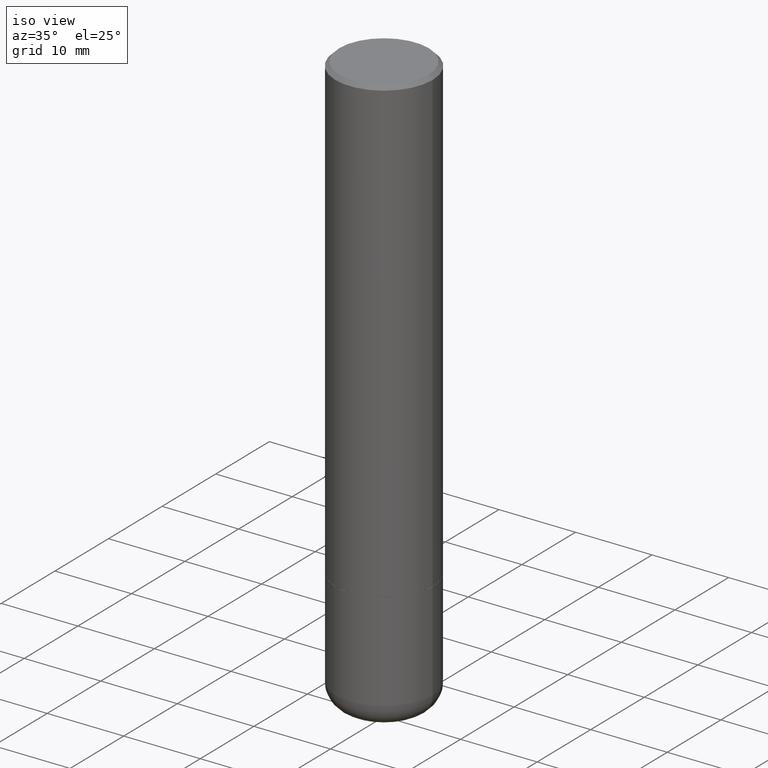
[diagram: clean part render]
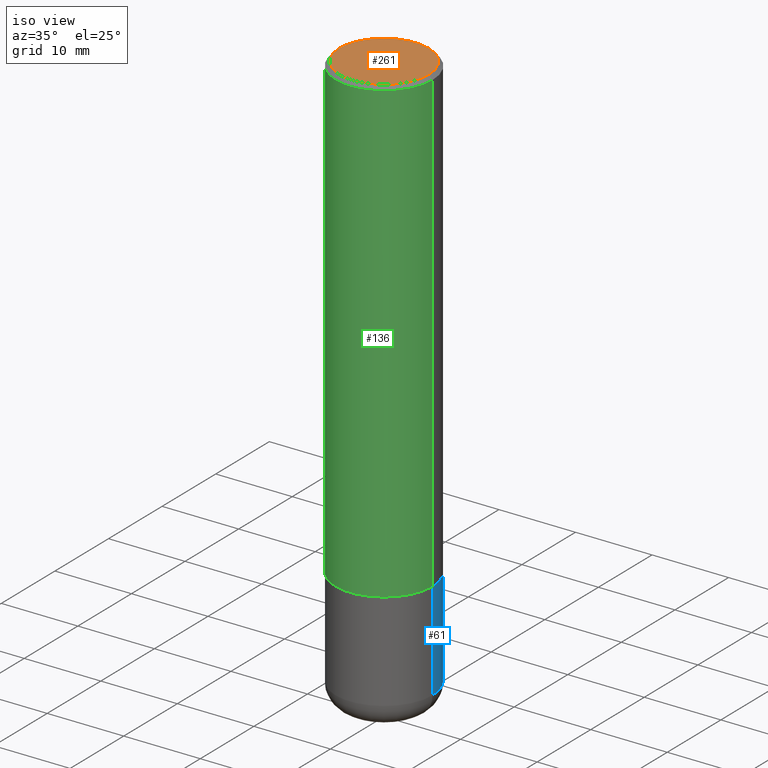
[diagram: same view with three faces highlighted in distinct colors, each labeled with its STEP entity id]
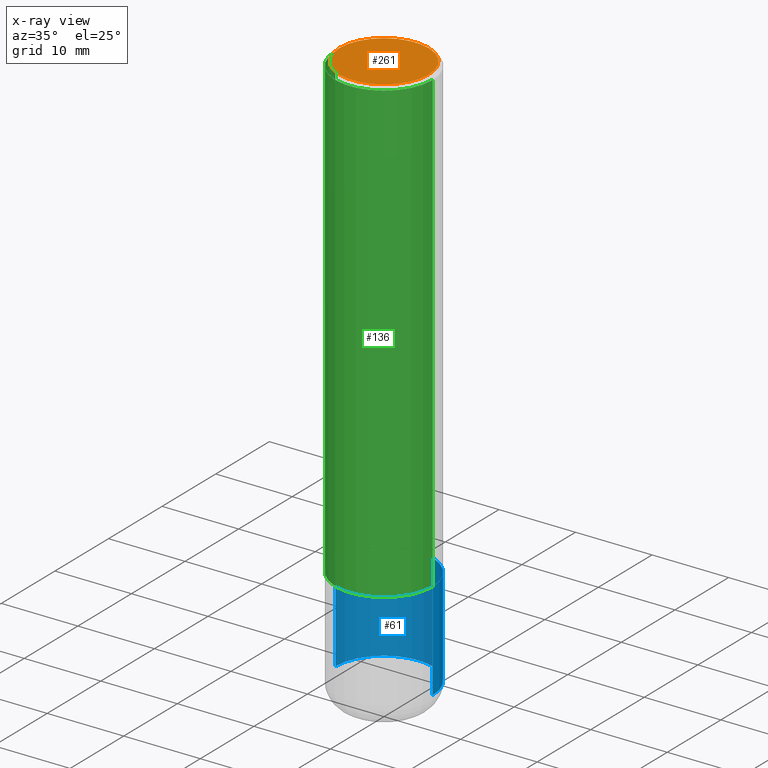
[diagram: x-ray of the same camera — body ghosted, the three highlighted faces saturated]
A machine part, iso view with three faces highlighted in distinct colors.
The next image is the same camera in x-ray (body ghosted, the three faces saturated) — at least one of them is partly hidden behind the body in this view.
Their STEP definitions:

[orange] entity #261 — the highlighted planar face has unit normal (0, -0, -1).
#7 = CARTESIAN_POINT ( 'NONE',  ( -0.2299999999999992328, 1.640996229256267392E-15, 8.537024980189468815E-18 ) ) ;
#21 = ORIENTED_EDGE ( 'NONE', *, *, #314, .T. ) ;
#28 = DIRECTION ( 'NONE',  ( -1.000000000000000000, 6.982962677686265922E-15, -4.876176775795935793E-29 ) ) ;
#66 = VERTEX_POINT ( 'NONE', #7 ) ;
#96 = CARTESIAN_POINT ( 'NONE',  ( 1.606081415867835743E-15, 0.2299999999999992328, -7.987721954438203042E-16 ) ) ;
#114 = EDGE_CURVE ( 'NONE', #66, #188, #481, .T. ) ;
#146 = EDGE_LOOP ( 'NONE', ( #409, #21 ) ) ;
#188 = VERTEX_POINT ( 'NONE', #282 ) ;
#261 = ADVANCED_FACE ( 'NONE', ( #277 ), #429, .F. ) ;
#277 = FACE_OUTER_BOUND ( 'NONE', #146, .T. ) ;
#282 = CARTESIAN_POINT ( 'NONE',  ( 0.2299999999999992328, -1.681434332853594278E-15, 8.537024980212318048E-18 ) ) ;
#286 = AXIS2_PLACEMENT_3D ( 'NONE', #391, #468, #395 ) ;
#292 = DIRECTION ( 'NONE',  ( 1.000000000000000000, -6.982962677686266711E-15, 4.875813741439116029E-29 ) ) ;
#314 = EDGE_CURVE ( 'NONE', #188, #66, #382, .T. ) ;
#323 = DIRECTION ( 'NONE',  ( -2.445468806185136597E-29, 3.491481338843145583E-15, 1.000000000000000000 ) ) ;
#325 = DIRECTION ( 'NONE',  ( 2.438088387897960049E-29, -3.491481338843145188E-15, -1.000000000000000000 ) ) ;
#374 = AXIS2_PLACEMENT_3D ( 'NONE', #412, #323, #292 ) ;
#382 = CIRCLE ( 'NONE', #374, 0.2299999999999992328 ) ;
#391 = CARTESIAN_POINT ( 'NONE',  ( -2.087702828670439639E-46, 2.980686340760894400E-32, 8.537024980200822558E-18 ) ) ;
#395 = DIRECTION ( 'NONE',  ( 1.000000000000000000, -6.982962677686266711E-15, 4.875813741439116029E-29 ) ) ;
#409 = ORIENTED_EDGE ( 'NONE', *, *, #114, .T. ) ;
#412 = CARTESIAN_POINT ( 'NONE',  ( -2.087702828670439639E-46, 2.980686340760894400E-32, 8.537024980200822558E-18 ) ) ;
#416 = AXIS2_PLACEMENT_3D ( 'NONE', #96, #325, #28 ) ;
#429 = PLANE ( 'NONE',  #416 ) ;
#468 = DIRECTION ( 'NONE',  ( -2.445468806185136597E-29, 3.491481338843145583E-15, 1.000000000000000000 ) ) ;
#481 = CIRCLE ( 'NONE', #286, 0.2299999999999992328 ) ;

[blue] entity #61 — the highlighted cylindrical surface (partial cylindrical patch) has radius 6.35 mm, axis along (-0, 0, 1).
#4 = CARTESIAN_POINT ( 'NONE',  ( -0.2499999999999998057, 1.776356839400249084E-15, -1.229733772563725465E-29 ) ) ;
#14 = DIRECTION ( 'NONE',  ( -2.445468806185136597E-29, 3.491481338843145583E-15, 1.000000000000000000 ) ) ;
#40 = EDGE_CURVE ( 'NONE', #335, #199, #492, .T. ) ;
#44 = DIRECTION ( 'NONE',  ( -2.445468806185136877E-29, 3.491481338843145188E-15, 1.000000000000000000 ) ) ;
#55 = CARTESIAN_POINT ( 'NONE',  ( 0.2499999999999998057, -1.745740669421565297E-15, 1.219044193948982967E-29 ) ) ;
#61 = ADVANCED_FACE ( 'NONE', ( #119 ), #426, .T. ) ;
#79 = CARTESIAN_POINT ( 'NONE',  ( 0.000000000000000000, 0.000000000000000000, 0.000000000000000000 ) ) ;
#88 = DIRECTION ( 'NONE',  ( 1.000000000000000000, -6.982962677686269077E-15, 0.000000000000000000 ) ) ;
#98 = EDGE_CURVE ( 'NONE', #347, #335, #309, .T. ) ;
#102 = CARTESIAN_POINT ( 'NONE',  ( 0.2500000000000000555, -1.180122287867913443E-14, -2.880004569232299527 ) ) ;
#109 = AXIS2_PLACEMENT_3D ( 'NONE', #330, #224, #473 ) ;
#117 = CIRCLE ( 'NONE', #109, 0.2499999999999995837 ) ;
#119 = FACE_OUTER_BOUND ( 'NONE', #276, .T. ) ;
#126 = VECTOR ( 'NONE', #44, 39.37007874015748143 ) ;
#141 = ORIENTED_EDGE ( 'NONE', *, *, #98, .T. ) ;
#174 = LINE ( 'NONE', #55, #408 ) ;
#199 = VERTEX_POINT ( 'NONE', #462 ) ;
#201 = DIRECTION ( 'NONE',  ( -2.445468806185136597E-29, 3.491481338843145583E-15, 1.000000000000000000 ) ) ;
#212 = CARTESIAN_POINT ( 'NONE',  ( 0.2499999999999995837, -1.003800884917403364E-14, -2.375000000000000000 ) ) ;
#217 = ORIENTED_EDGE ( 'NONE', *, *, #278, .F. ) ;
#224 = DIRECTION ( 'NONE',  ( -2.445468806185136597E-29, 3.491481338843145583E-15, 1.000000000000000000 ) ) ;
#249 = CARTESIAN_POINT ( 'NONE',  ( -0.2500000000000000555, -7.397518355104768470E-15, -2.880004569232299527 ) ) ;
#276 = EDGE_LOOP ( 'NONE', ( #141, #484, #449, #217 ) ) ;
#278 = EDGE_CURVE ( 'NONE', #347, #375, #174, .T. ) ;
#309 = CIRCLE ( 'NONE', #430, 0.2500000000000000555 ) ;
#330 = CARTESIAN_POINT ( 'NONE',  ( 5.807988414689700538E-29, -8.292268179752471696E-15, -2.375000000000000000 ) ) ;
#335 = VERTEX_POINT ( 'NONE', #249 ) ;
#347 = VERTEX_POINT ( 'NONE', #102 ) ;
#352 = DIRECTION ( 'NONE',  ( 1.000000000000000000, -6.982962677686266711E-15, 4.876176775795935793E-29 ) ) ;
#353 = CARTESIAN_POINT ( 'NONE',  ( 7.042961335728249090E-29, -1.005548220925756617E-14, -2.880004569232299527 ) ) ;
#375 = VERTEX_POINT ( 'NONE', #212 ) ;
#406 = AXIS2_PLACEMENT_3D ( 'NONE', #79, #201, #352 ) ;
#408 = VECTOR ( 'NONE', #474, 39.37007874015748143 ) ;
#418 = EDGE_CURVE ( 'NONE', #375, #199, #117, .T. ) ;
#426 = CYLINDRICAL_SURFACE ( 'NONE', #406, 0.2499999999999998057 ) ;
#430 = AXIS2_PLACEMENT_3D ( 'NONE', #353, #14, #88 ) ;
#449 = ORIENTED_EDGE ( 'NONE', *, *, #418, .F. ) ;
#462 = CARTESIAN_POINT ( 'NONE',  ( -0.2499999999999995837, -7.397518355104770047E-15, -2.375000000000000000 ) ) ;
#473 = DIRECTION ( 'NONE',  ( 1.000000000000000000, -6.982962677686262766E-15, 0.000000000000000000 ) ) ;
#474 = DIRECTION ( 'NONE',  ( -2.445468806185136877E-29, 3.491481338843145188E-15, 1.000000000000000000 ) ) ;
#484 = ORIENTED_EDGE ( 'NONE', *, *, #40, .T. ) ;
#492 = LINE ( 'NONE', #4, #126 ) ;

[green] entity #136 — the highlighted cylindrical surface (partial cylindrical patch) has radius 6.35 mm, axis along (-0, 0, 1).
#10 = EDGE_CURVE ( 'NONE', #380, #77, #42, .T. ) ;
#24 = EDGE_CURVE ( 'NONE', #455, #380, #210, .T. ) ;
#42 = LINE ( 'NONE', #417, #216 ) ;
#47 = DIRECTION ( 'NONE',  ( -2.445468806185136597E-29, 3.491481338843145583E-15, 1.000000000000000000 ) ) ;
#73 = CARTESIAN_POINT ( 'NONE',  ( 0.2499999999999993061, -1.784954126219741456E-15, -0.02000000000000010797 ) ) ;
#77 = VERTEX_POINT ( 'NONE', #73 ) ;
#104 = DIRECTION ( 'NONE',  ( -2.445468806185136597E-29, 3.491481338843145583E-15, 1.000000000000000000 ) ) ;
#113 = DIRECTION ( 'NONE',  ( -2.445468806185136597E-29, 3.491481338843145583E-15, 1.000000000000000000 ) ) ;
#122 = ORIENTED_EDGE ( 'NONE', *, *, #312, .F. ) ;
#128 = CYLINDRICAL_SURFACE ( 'NONE', #450, 0.2499999999999994449 ) ;
#136 = ADVANCED_FACE ( 'NONE', ( #471 ), #128, .T. ) ;
#159 = VECTOR ( 'NONE', #296, 39.37007874015748143 ) ;
#194 = AXIS2_PLACEMENT_3D ( 'NONE', #287, #104, #221 ) ;
#197 = CARTESIAN_POINT ( 'NONE',  ( 5.805542945883514935E-29, -8.288776698413628688E-15, -2.374000000000000110 ) ) ;
#202 = CARTESIAN_POINT ( 'NONE',  ( 0.000000000000000000, 0.000000000000000000, 0.000000000000000000 ) ) ;
#210 = CIRCLE ( 'NONE', #275, 0.2499999999999995837 ) ;
#211 = DIRECTION ( 'NONE',  ( 1.000000000000000000, -6.982962677686266711E-15, 4.876176775795935232E-29 ) ) ;
#213 = ORIENTED_EDGE ( 'NONE', *, *, #10, .T. ) ;
#216 = VECTOR ( 'NONE', #339, 39.37007874015748143 ) ;
#221 = DIRECTION ( 'NONE',  ( 1.000000000000000000, -6.982962677686267499E-15, 0.000000000000000000 ) ) ;
#222 = CIRCLE ( 'NONE', #194, 0.2499999999999993061 ) ;
#235 = VERTEX_POINT ( 'NONE', #247 ) ;
#247 = CARTESIAN_POINT ( 'NONE',  ( -0.2499999999999993061, 1.675911042644698449E-15, -0.02000000000000010797 ) ) ;
#260 = LINE ( 'NONE', #444, #159 ) ;
#275 = AXIS2_PLACEMENT_3D ( 'NONE', #197, #113, #428 ) ;
#287 = CARTESIAN_POINT ( 'NONE',  ( 4.890937612370299433E-31, -6.982962677686328587E-17, -0.02000000000000010797 ) ) ;
#296 = DIRECTION ( 'NONE',  ( -2.445468806185136877E-29, 3.491481338843145188E-15, 1.000000000000000000 ) ) ;
#312 = EDGE_CURVE ( 'NONE', #455, #235, #260, .T. ) ;
#339 = DIRECTION ( 'NONE',  ( -2.445468806185136877E-29, 3.491481338843145188E-15, 1.000000000000000000 ) ) ;
#341 = CARTESIAN_POINT ( 'NONE',  ( -0.2499999999999995559, -2.402946323194996317E-15, -2.374000000000000110 ) ) ;
#365 = CARTESIAN_POINT ( 'NONE',  ( 0.2499999999999995837, -1.003451736783519379E-14, -2.374000000000000110 ) ) ;
#368 = EDGE_LOOP ( 'NONE', ( #122, #384, #213, #411 ) ) ;
#380 = VERTEX_POINT ( 'NONE', #365 ) ;
#381 = EDGE_CURVE ( 'NONE', #235, #77, #222, .T. ) ;
#384 = ORIENTED_EDGE ( 'NONE', *, *, #24, .T. ) ;
#411 = ORIENTED_EDGE ( 'NONE', *, *, #381, .F. ) ;
#417 = CARTESIAN_POINT ( 'NONE',  ( 0.2499999999999994449, -1.745740669421562733E-15, 1.219044193948981146E-29 ) ) ;
#428 = DIRECTION ( 'NONE',  ( 1.000000000000000000, -6.982962677686270655E-15, 0.000000000000000000 ) ) ;
#444 = CARTESIAN_POINT ( 'NONE',  ( -0.2499999999999994449, 1.776356839400246520E-15, -1.229733772563723783E-29 ) ) ;
#450 = AXIS2_PLACEMENT_3D ( 'NONE', #202, #47, #211 ) ;
#455 = VERTEX_POINT ( 'NONE', #341 ) ;
#471 = FACE_OUTER_BOUND ( 'NONE', #368, .T. ) ;